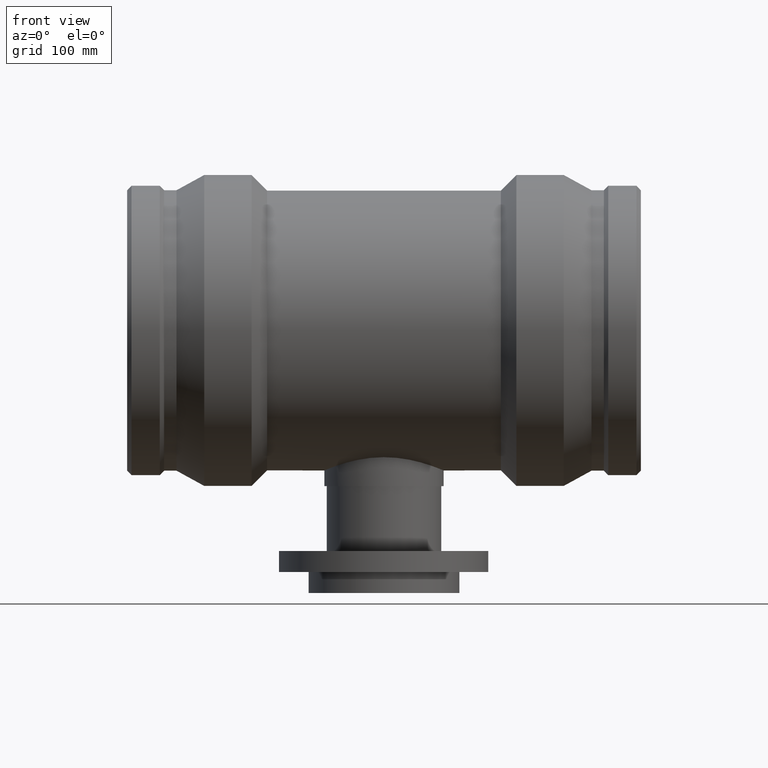
[diagram: clean part render]
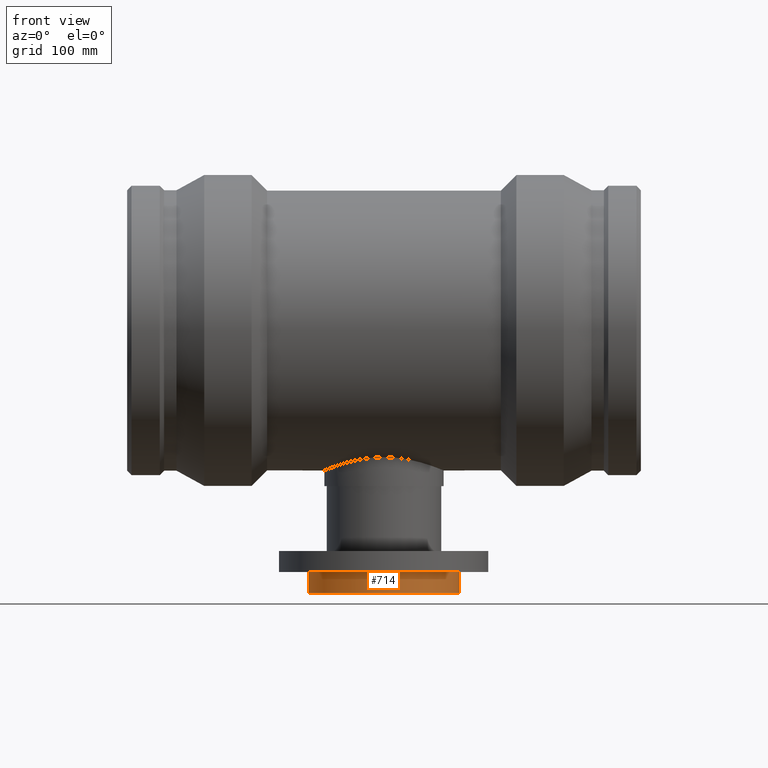
[diagram: same view with one face highlighted and labeled with its STEP entity id]
A machine part, front view. The second image highlights one B-rep face of the part: STEP entity #714.
In plain terms, the highlighted cylindrical surface (bore or boss wall) has radius 79 mm, axis along (-0, 0, -1).
Its self-contained STEP definition (entity closure, byte-faithful):
#58=FACE_BOUND('',#305,.T.);
#139=CIRCLE('',#790,79.);
#143=CIRCLE('',#798,79.);
#196=CYLINDRICAL_SURFACE('',#797,79.);
#230=FACE_OUTER_BOUND('',#304,.T.);
#304=EDGE_LOOP('',(#590));
#305=EDGE_LOOP('',(#591));
#440=VERTEX_POINT('',#1516);
#444=VERTEX_POINT('',#1528);
#510=EDGE_CURVE('',#440,#440,#139,.T.);
#514=EDGE_CURVE('',#444,#444,#143,.T.);
#590=ORIENTED_EDGE('',*,*,#514,.F.);
#591=ORIENTED_EDGE('',*,*,#510,.F.);
#714=ADVANCED_FACE('',(#230,#58),#196,.T.);
#790=AXIS2_PLACEMENT_3D('',#1517,#945,#946);
#797=AXIS2_PLACEMENT_3D('',#1527,#959,#960);
#798=AXIS2_PLACEMENT_3D('',#1529,#961,#962);
#945=DIRECTION('center_axis',(-1.22464679914735E-16,0.,-1.));
#946=DIRECTION('ref_axis',(1.,0.,-1.22464679914735E-16));
#959=DIRECTION('center_axis',(-1.22464679914735E-16,0.,-1.));
#960=DIRECTION('ref_axis',(-1.,0.,0.));
#961=DIRECTION('center_axis',(1.22464679914735E-16,0.,1.));
#962=DIRECTION('ref_axis',(-1.,0.,0.));
#1516=CARTESIAN_POINT('',(-79.,0.,-275.));
#1517=CARTESIAN_POINT('Origin',(-3.36777869765522E-14,0.,-275.));
#1527=CARTESIAN_POINT('Origin',(-3.23306754974901E-14,0.,-264.));
#1528=CARTESIAN_POINT('',(-79.,0.,-253.));
#1529=CARTESIAN_POINT('Origin',(-3.0983564018428E-14,0.,-253.));